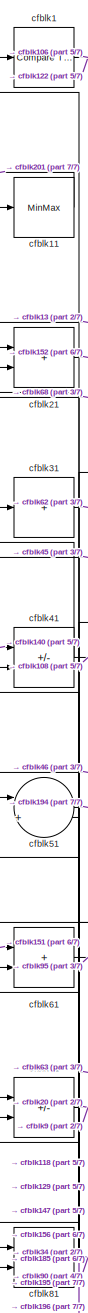
[diagram: root canvas - part 1/7, top left region]
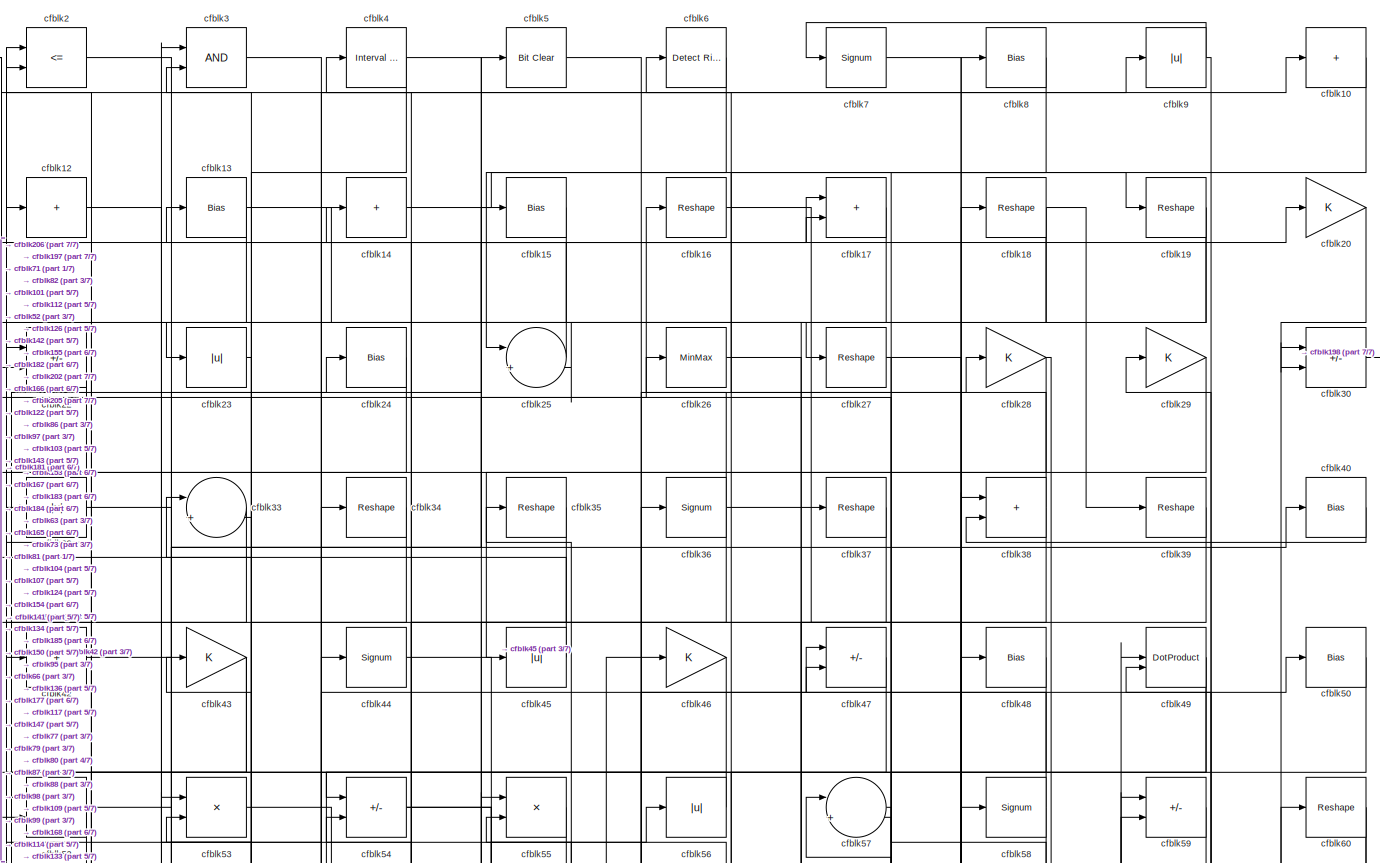
[diagram: root canvas - part 2/7, full width, top band]
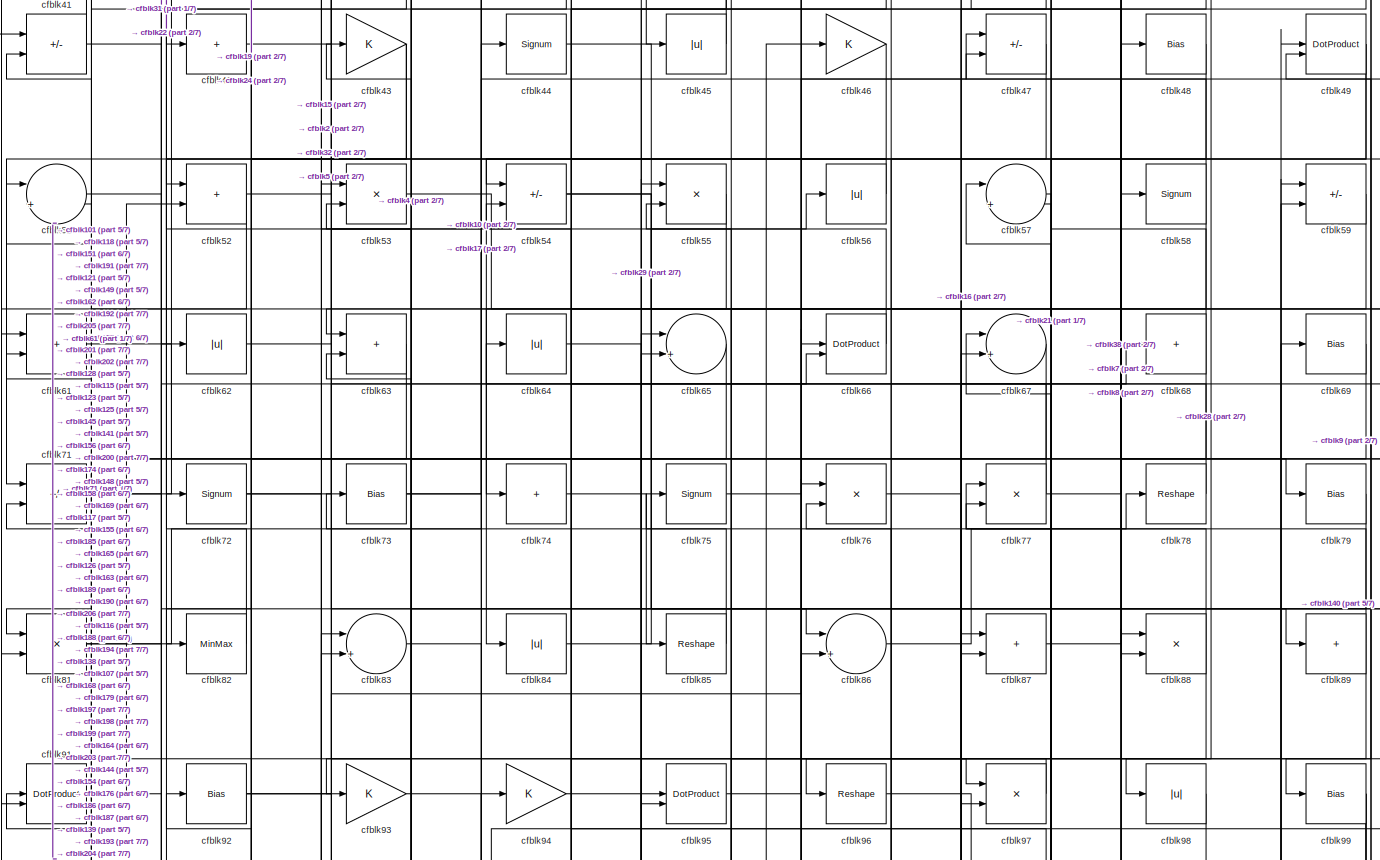
[diagram: root canvas - part 3/7, full width, middle band]
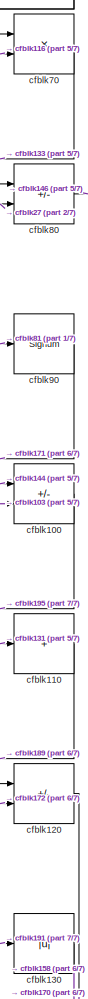
[diagram: root canvas - part 4/7, middle right region]
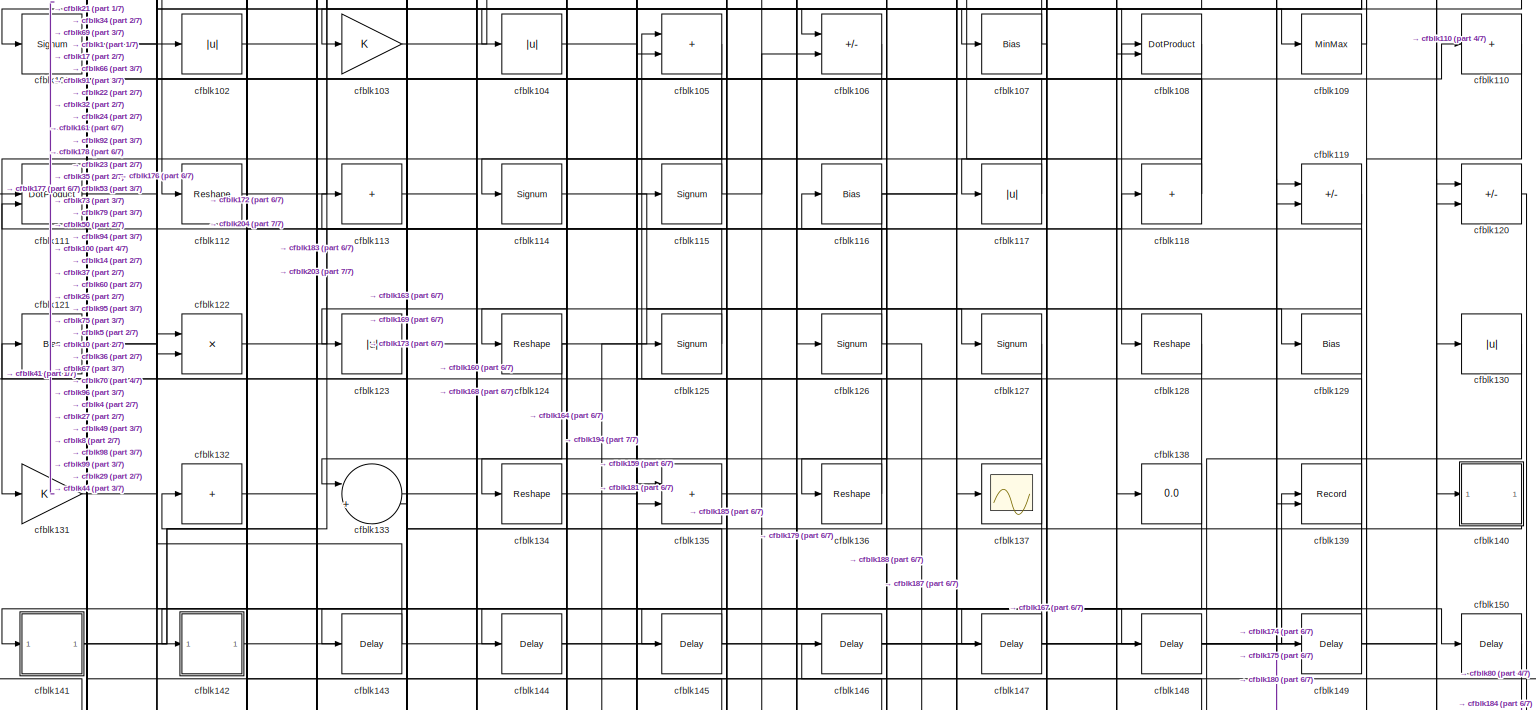
[diagram: root canvas - part 5/7, full width, middle band]
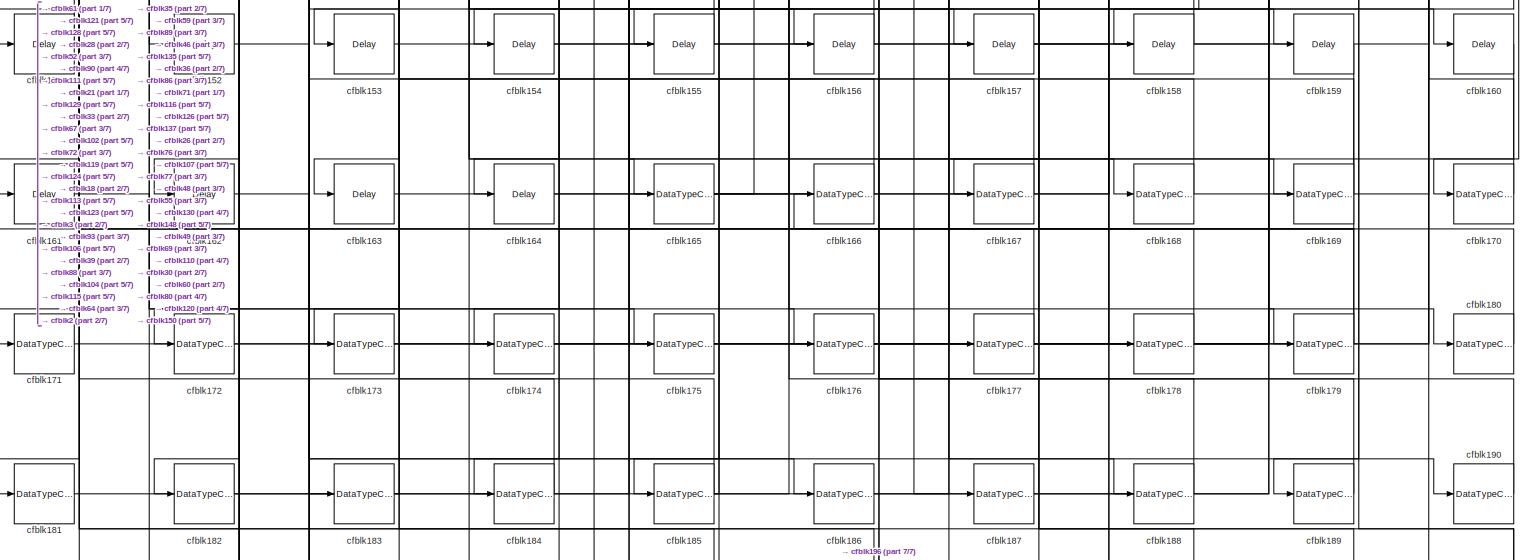
[diagram: root canvas - part 6/7, full width, bottom band]
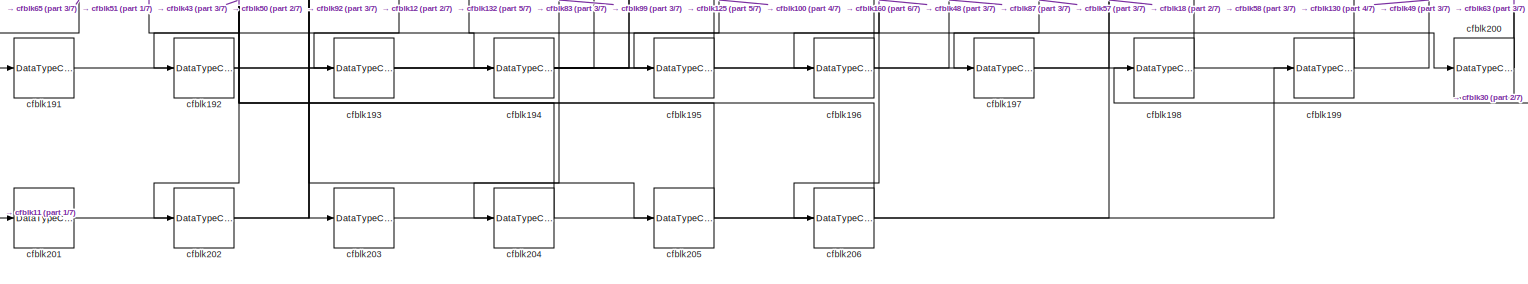
[diagram: root canvas - part 7/7, full width, bottom band]
MODEL slx_a1dbbc6107d8
KIND model
CONFIG AbsTol = auto
CONFIG EnableMultiTasking = off
CONFIG FixedStep = auto
CONFIG MaxStep = auto
CONFIG MinStep = auto
CONFIG RelTol = 1e-3
CONFIG SampleTimeConstraint = Unconstrained
CONFIG SolverName = VariableStepAuto
CONFIG StartTime = 0.0
CONFIG StopTime = 10.0
BLOCK [Reference] cfblk1  REF=hdlsllib/Logic and Bit
Operations/Compare
To Zero
  SourceBlock = hdlsllib/Logic and Bit\nOperations/Compare\nTo Zero
  SourceType = Compare To Zero
BLOCK [Sum] cfblk10
  IconShape = rectangular
  Inputs = +
BLOCK [Sum] cfblk100
  IconShape = rectangular
  Inputs = +-
BLOCK [Signum] cfblk101
BLOCK [Abs] cfblk102
  SaturateOnIntegerOverflow = off
BLOCK [Gain] cfblk103
BLOCK [Abs] cfblk104
  SaturateOnIntegerOverflow = off
BLOCK [Sum] cfblk105
  IconShape = rectangular
BLOCK [Sum] cfblk106
  IconShape = rectangular
  Inputs = +-
BLOCK [Bias] cfblk107
  Bias = 0.0
  SaturateOnIntegerOverflow = off
BLOCK [DotProduct] cfblk108
  OutDataTypeStr = Inherit: Inherit via internal rule
BLOCK [MinMax] cfblk109
BLOCK [MinMax] cfblk11
BLOCK [Sum] cfblk110
  IconShape = rectangular
  Inputs = +
BLOCK [DotProduct] cfblk111
  OutDataTypeStr = Inherit: Inherit via internal rule
BLOCK [Reshape] cfblk112
BLOCK [Sum] cfblk113
  IconShape = rectangular
  Inputs = +
BLOCK [Signum] cfblk114
BLOCK [Signum] cfblk115
BLOCK [Bias] cfblk116
  Bias = 0.0
  SaturateOnIntegerOverflow = off
BLOCK [Abs] cfblk117
  SaturateOnIntegerOverflow = off
BLOCK [Sum] cfblk118
  IconShape = rectangular
  Inputs = +
BLOCK [Sum] cfblk119
  IconShape = rectangular
  Inputs = +-
BLOCK [Sum] cfblk12
  IconShape = rectangular
  Inputs = +
BLOCK [Sum] cfblk120
  IconShape = rectangular
  Inputs = +-
BLOCK [Bias] cfblk121
  Bias = 0.0
  SaturateOnIntegerOverflow = off
BLOCK [Product] cfblk122
  Inputs = */
  RndMeth = Zero
  SaturateOnIntegerOverflow = on
BLOCK [Abs] cfblk123
  SaturateOnIntegerOverflow = off
BLOCK [Reshape] cfblk124
BLOCK [Signum] cfblk125
BLOCK [Signum] cfblk126
BLOCK [Signum] cfblk127
BLOCK [Reshape] cfblk128
BLOCK [Bias] cfblk129
  Bias = 0.0
  SaturateOnIntegerOverflow = off
BLOCK [Bias] cfblk13
  Bias = 0.0
  SaturateOnIntegerOverflow = off
BLOCK [Abs] cfblk130
  SaturateOnIntegerOverflow = off
BLOCK [Gain] cfblk131
BLOCK [Sum] cfblk132
  IconShape = rectangular
  Inputs = +
BLOCK [Sum] cfblk133
  Inputs = |++
BLOCK [Reshape] cfblk134
BLOCK [Sum] cfblk135
  IconShape = rectangular
BLOCK [Reshape] cfblk136
BLOCK [Scope] cfblk137
  Floating = off
  NumInputPorts = 1
  ScopeSpecificationString = Simulink.scopes.TimeScopeBlockCfg('CurrentConfiguration', extmgr.ConfigurationSet(extmgr.Configuration('Core','General UI',true),extmgr.Configuration('Core','Source UI',true),extmgr.Configuration('Sources','WiredSimulink',true,'DataLoggingVariableName','ScopeData2','DataLoggingSaveFormat','Array','DataLoggingLimitDataPoints',true,'DataLoggingDecimation','1'),extmgr.Configuration('Visuals','Time Do...<+868ch>
BLOCK [Display] cfblk138
  Decimation = 1
BLOCK [Record] cfblk139
  CompatibilityTag = XY
  FileSettingsInternal = {"entries":[{"content":{"excelSettings":{"content":{},"type":"Streamout.ExcelSettings"}},"type":"Streamout.FileSettingStorage","uuid":""}],"packageUris":["http:\/\/schema.mathworks.com\/mf0\/streamout_blocks\/R2020a"],"version":"1.0"}
  Layout = [1 1]
  SignalsInternal = {"entries":[{"content":{"signals":[{"content":{"blockPath":[],"dimensions":[1],"domain":"","lineColor":"#a2142f","plots":[1],"port":1,"signalID":2452,"signalName":"XY Graph:1"},"type":"RecordBlkView.Signal","uuid":""},{"content":{"blockPath":[],"dimensions":[1],"domain":"","lineColor":"#139fff","plots":[1],"port":2,"signalID":2455,"signalName":"XY Graph:2"},"type":"RecordBlkView.Signal","uuid":""}...<+146ch>
  VisualizationBindings = {"xyplotplugin":{"info":[{"series":[{"bindingParametersList":[{"parameter":"X-Axis","signalID":2452,"signalName":"XY Graph:1"},{"parameter":"Y-Axis","signalID":2455,"signalName":"XY Graph:2"}],"seriesID":7523}],"subplotID":1}]}}
  st = -1
BLOCK [Sum] cfblk14
  IconShape = rectangular
  Inputs = +
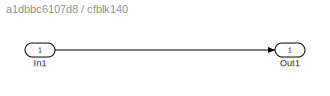
BLOCK [SubSystem] cfblk140
  LibrarySourceBlock = hdlsllib/Ports &\nSubsystems/Subsystem
BLOCK [Inport] cfblk140/In1
BLOCK [Outport] cfblk140/Out1
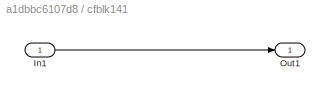
BLOCK [SubSystem] cfblk141
  LibrarySourceBlock = hdlsllib/Ports &\nSubsystems/Subsystem
BLOCK [Inport] cfblk141/In1
BLOCK [Outport] cfblk141/Out1
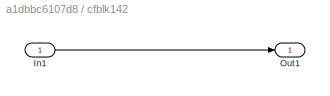
BLOCK [SubSystem] cfblk142
  LibrarySourceBlock = hdlsllib/Ports &\nSubsystems/Subsystem
BLOCK [Inport] cfblk142/In1
BLOCK [Outport] cfblk142/Out1
BLOCK [Delay] cfblk143
  InputPortMap = u0
  SampleTime = 1
BLOCK [Delay] cfblk144
  InputPortMap = u0
  SampleTime = 1
BLOCK [Delay] cfblk145
  InputPortMap = u0
  SampleTime = 1
BLOCK [Delay] cfblk146
  InputPortMap = u0
  SampleTime = 1
BLOCK [Delay] cfblk147
  InputPortMap = u0
  SampleTime = 1
BLOCK [Delay] cfblk148
  InputPortMap = u0
  SampleTime = 1
BLOCK [Delay] cfblk149
  InputPortMap = u0
  SampleTime = 1
BLOCK [Bias] cfblk15
  Bias = 0.0
  SaturateOnIntegerOverflow = off
BLOCK [Delay] cfblk150
  InputPortMap = u0
  SampleTime = 1
BLOCK [Delay] cfblk151
  InputPortMap = u0
  SampleTime = 1
BLOCK [Delay] cfblk152
  InputPortMap = u0
  SampleTime = 1
BLOCK [Delay] cfblk153
  InputPortMap = u0
  SampleTime = 1
BLOCK [Delay] cfblk154
  InputPortMap = u0
  SampleTime = 1
BLOCK [Delay] cfblk155
  InputPortMap = u0
  SampleTime = 1
BLOCK [Delay] cfblk156
  InputPortMap = u0
  SampleTime = 1
BLOCK [Delay] cfblk157
  InputPortMap = u0
  SampleTime = 1
BLOCK [Delay] cfblk158
  InputPortMap = u0
  SampleTime = 1
BLOCK [Delay] cfblk159
  InputPortMap = u0
  SampleTime = 1
BLOCK [Reshape] cfblk16
BLOCK [Delay] cfblk160
  InputPortMap = u0
  SampleTime = 1
BLOCK [Delay] cfblk161
  InputPortMap = u0
  SampleTime = 1
BLOCK [Delay] cfblk162
  InputPortMap = u0
  SampleTime = 1
BLOCK [Delay] cfblk163
  InputPortMap = u0
  SampleTime = 1
BLOCK [Delay] cfblk164
  InputPortMap = u0
  SampleTime = 1
BLOCK [DataTypeConversion] cfblk165
  RndMeth = Floor
  SaturateOnIntegerOverflow = off
BLOCK [DataTypeConversion] cfblk166
  OutDataTypeStr = uint8
  RndMeth = Floor
  SaturateOnIntegerOverflow = off
BLOCK [DataTypeConversion] cfblk167
  OutDataTypeStr = uint8
  RndMeth = Floor
  SaturateOnIntegerOverflow = off
BLOCK [DataTypeConversion] cfblk168
  RndMeth = Floor
  SaturateOnIntegerOverflow = off
BLOCK [DataTypeConversion] cfblk169
  OutDataTypeStr = uint8
  RndMeth = Floor
  SaturateOnIntegerOverflow = off
BLOCK [Sum] cfblk17
  IconShape = rectangular
BLOCK [DataTypeConversion] cfblk170
  OutDataTypeStr = uint8
  RndMeth = Floor
  SaturateOnIntegerOverflow = off
BLOCK [DataTypeConversion] cfblk171
  OutDataTypeStr = uint8
  RndMeth = Floor
  SaturateOnIntegerOverflow = off
BLOCK [DataTypeConversion] cfblk172
  OutDataTypeStr = uint8
  RndMeth = Floor
  SaturateOnIntegerOverflow = off
BLOCK [DataTypeConversion] cfblk173
  OutDataTypeStr = uint8
  RndMeth = Floor
  SaturateOnIntegerOverflow = off
BLOCK [DataTypeConversion] cfblk174
  OutDataTypeStr = uint8
  RndMeth = Floor
  SaturateOnIntegerOverflow = off
BLOCK [DataTypeConversion] cfblk175
  OutDataTypeStr = uint8
  RndMeth = Floor
  SaturateOnIntegerOverflow = off
BLOCK [DataTypeConversion] cfblk176
  OutDataTypeStr = uint8
  RndMeth = Floor
  SaturateOnIntegerOverflow = off
BLOCK [DataTypeConversion] cfblk177
  OutDataTypeStr = uint8
  RndMeth = Floor
  SaturateOnIntegerOverflow = off
BLOCK [DataTypeConversion] cfblk178
  OutDataTypeStr = uint8
  RndMeth = Floor
  SaturateOnIntegerOverflow = off
BLOCK [DataTypeConversion] cfblk179
  RndMeth = Floor
  SaturateOnIntegerOverflow = off
BLOCK [Reshape] cfblk18
BLOCK [DataTypeConversion] cfblk180
  OutDataTypeStr = uint8
  RndMeth = Floor
  SaturateOnIntegerOverflow = off
BLOCK [DataTypeConversion] cfblk181
  OutDataTypeStr = uint8
  RndMeth = Floor
  SaturateOnIntegerOverflow = off
BLOCK [DataTypeConversion] cfblk182
  OutDataTypeStr = uint8
  RndMeth = Floor
  SaturateOnIntegerOverflow = off
BLOCK [DataTypeConversion] cfblk183
  OutDataTypeStr = uint8
  RndMeth = Floor
  SaturateOnIntegerOverflow = off
BLOCK [DataTypeConversion] cfblk184
  OutDataTypeStr = uint8
  RndMeth = Floor
  SaturateOnIntegerOverflow = off
BLOCK [DataTypeConversion] cfblk185
  RndMeth = Floor
  SaturateOnIntegerOverflow = off
BLOCK [DataTypeConversion] cfblk186
  OutDataTypeStr = uint8
  RndMeth = Floor
  SaturateOnIntegerOverflow = off
BLOCK [DataTypeConversion] cfblk187
  OutDataTypeStr = uint8
  RndMeth = Floor
  SaturateOnIntegerOverflow = off
BLOCK [DataTypeConversion] cfblk188
  OutDataTypeStr = uint8
  RndMeth = Floor
  SaturateOnIntegerOverflow = off
BLOCK [DataTypeConversion] cfblk189
  OutDataTypeStr = uint8
  RndMeth = Floor
  SaturateOnIntegerOverflow = off
BLOCK [Reshape] cfblk19
BLOCK [DataTypeConversion] cfblk190
  OutDataTypeStr = uint8
  RndMeth = Floor
  SaturateOnIntegerOverflow = off
BLOCK [DataTypeConversion] cfblk191
  OutDataTypeStr = uint8
  RndMeth = Floor
  SaturateOnIntegerOverflow = off
BLOCK [DataTypeConversion] cfblk192
  OutDataTypeStr = uint8
  RndMeth = Floor
  SaturateOnIntegerOverflow = off
BLOCK [DataTypeConversion] cfblk193
  OutDataTypeStr = uint8
  RndMeth = Floor
  SaturateOnIntegerOverflow = off
BLOCK [DataTypeConversion] cfblk194
  RndMeth = Floor
  SaturateOnIntegerOverflow = off
BLOCK [DataTypeConversion] cfblk195
  OutDataTypeStr = uint8
  RndMeth = Floor
  SaturateOnIntegerOverflow = off
BLOCK [DataTypeConversion] cfblk196
  OutDataTypeStr = uint8
  RndMeth = Floor
  SaturateOnIntegerOverflow = off
BLOCK [DataTypeConversion] cfblk197
  OutDataTypeStr = uint8
  RndMeth = Floor
  SaturateOnIntegerOverflow = off
BLOCK [DataTypeConversion] cfblk198
  OutDataTypeStr = uint8
  RndMeth = Floor
  SaturateOnIntegerOverflow = off
BLOCK [DataTypeConversion] cfblk199
  OutDataTypeStr = uint8
  RndMeth = Floor
  SaturateOnIntegerOverflow = off
BLOCK [RelationalOperator] cfblk2
  InputSameDT = off
  Operator = <=
  OutDataTypeStr = boolean
BLOCK [Gain] cfblk20
BLOCK [DataTypeConversion] cfblk200
  RndMeth = Floor
  SaturateOnIntegerOverflow = off
BLOCK [DataTypeConversion] cfblk201
  OutDataTypeStr = uint8
  RndMeth = Floor
  SaturateOnIntegerOverflow = off
BLOCK [DataTypeConversion] cfblk202
  OutDataTypeStr = uint8
  RndMeth = Floor
  SaturateOnIntegerOverflow = off
BLOCK [DataTypeConversion] cfblk203
  OutDataTypeStr = uint8
  RndMeth = Floor
  SaturateOnIntegerOverflow = off
BLOCK [DataTypeConversion] cfblk204
  OutDataTypeStr = uint8
  RndMeth = Floor
  SaturateOnIntegerOverflow = off
BLOCK [DataTypeConversion] cfblk205
  RndMeth = Floor
  SaturateOnIntegerOverflow = off
BLOCK [DataTypeConversion] cfblk206
  OutDataTypeStr = uint8
  RndMeth = Floor
  SaturateOnIntegerOverflow = off
BLOCK [Sum] cfblk21
  IconShape = rectangular
BLOCK [Sum] cfblk22
  IconShape = rectangular
  Inputs = +-
BLOCK [Abs] cfblk23
  SaturateOnIntegerOverflow = off
BLOCK [Bias] cfblk24
  Bias = 0.0
  SaturateOnIntegerOverflow = off
BLOCK [Sum] cfblk25
  Inputs = |++
BLOCK [MinMax] cfblk26
BLOCK [Reshape] cfblk27
BLOCK [Gain] cfblk28
BLOCK [Gain] cfblk29
BLOCK [Logic] cfblk3
  AllPortsSameDT = off
  OutDataTypeStr = boolean
BLOCK [Sum] cfblk30
  IconShape = rectangular
  Inputs = +-
BLOCK [Sum] cfblk31
  IconShape = rectangular
  Inputs = +
BLOCK [Abs] cfblk32
  SaturateOnIntegerOverflow = off
BLOCK [Sum] cfblk33
  Inputs = |++
BLOCK [Reshape] cfblk34
BLOCK [Reshape] cfblk35
BLOCK [Signum] cfblk36
BLOCK [Reshape] cfblk37
BLOCK [Sum] cfblk38
  IconShape = rectangular
BLOCK [Reshape] cfblk39
BLOCK [Reference] cfblk4  REF=hdlsllib/Logic and Bit
Operations/Interval Test
  SourceBlock = hdlsllib/Logic and Bit\nOperations/Interval Test
  SourceType = Interval Test
BLOCK [Bias] cfblk40
  Bias = 0.0
  SaturateOnIntegerOverflow = off
BLOCK [Sum] cfblk41
  IconShape = rectangular
  Inputs = +-
BLOCK [Sum] cfblk42
  IconShape = rectangular
  Inputs = +
BLOCK [Gain] cfblk43
BLOCK [Signum] cfblk44
BLOCK [Abs] cfblk45
  SaturateOnIntegerOverflow = off
BLOCK [Gain] cfblk46
BLOCK [Sum] cfblk47
  IconShape = rectangular
  Inputs = +-
BLOCK [Bias] cfblk48
  Bias = 0.0
  SaturateOnIntegerOverflow = off
BLOCK [DotProduct] cfblk49
  OutDataTypeStr = Inherit: Inherit via internal rule
BLOCK [Reference] cfblk5  REF=simulink/Logic and Bit
Operations/Bit Clear
  LibrarySourceBlock = hdlsllib/Logic and Bit\nOperations/Bit Clear
  SourceBlock = simulink/Logic and Bit\nOperations/Bit Clear
  SourceType = Bit Clear
BLOCK [Bias] cfblk50
  Bias = 0.0
  SaturateOnIntegerOverflow = off
BLOCK [Sum] cfblk51
  Inputs = |++
BLOCK [Sum] cfblk52
  IconShape = rectangular
BLOCK [Product] cfblk53
  Inputs = */
  RndMeth = Zero
  SaturateOnIntegerOverflow = on
BLOCK [Sum] cfblk54
  IconShape = rectangular
  Inputs = +-
BLOCK [Product] cfblk55
  Inputs = */
  RndMeth = Zero
  SaturateOnIntegerOverflow = on
BLOCK [Abs] cfblk56
  SaturateOnIntegerOverflow = off
BLOCK [Sum] cfblk57
  Inputs = |++
BLOCK [Signum] cfblk58
BLOCK [Sum] cfblk59
  IconShape = rectangular
  Inputs = +-
BLOCK [Reference] cfblk6  REF=hdlsllib/Logic and Bit
Operations/Detect Rise
Positive
  SourceBlock = hdlsllib/Logic and Bit\nOperations/Detect Rise\nPositive
  SourceType = Detect Rise Positive
BLOCK [Reshape] cfblk60
BLOCK [Sum] cfblk61
  IconShape = rectangular
BLOCK [Abs] cfblk62
  SaturateOnIntegerOverflow = off
BLOCK [Sum] cfblk63
  IconShape = rectangular
BLOCK [Abs] cfblk64
  SaturateOnIntegerOverflow = off
BLOCK [Sum] cfblk65
  Inputs = |++
BLOCK [DotProduct] cfblk66
  OutDataTypeStr = Inherit: Inherit via internal rule
BLOCK [Sum] cfblk67
  Inputs = |++
BLOCK [Sum] cfblk68
  IconShape = rectangular
  Inputs = +
BLOCK [Bias] cfblk69
  Bias = 0.0
  SaturateOnIntegerOverflow = off
BLOCK [Signum] cfblk7
BLOCK [Product] cfblk70
  Inputs = */
  RndMeth = Zero
  SaturateOnIntegerOverflow = on
BLOCK [Sum] cfblk71
  IconShape = rectangular
  Inputs = +-
BLOCK [Signum] cfblk72
BLOCK [Bias] cfblk73
  Bias = 0.0
  SaturateOnIntegerOverflow = off
BLOCK [Sum] cfblk74
  IconShape = rectangular
  Inputs = +
BLOCK [Signum] cfblk75
BLOCK [Product] cfblk76
  Inputs = */
  RndMeth = Zero
  SaturateOnIntegerOverflow = on
BLOCK [Product] cfblk77
  Inputs = */
  RndMeth = Zero
  SaturateOnIntegerOverflow = on
BLOCK [Reshape] cfblk78
BLOCK [Bias] cfblk79
  Bias = 0.0
  SaturateOnIntegerOverflow = off
BLOCK [Bias] cfblk8
  Bias = 0.0
  SaturateOnIntegerOverflow = off
BLOCK [Sum] cfblk80
  IconShape = rectangular
  Inputs = +-
BLOCK [Product] cfblk81
  Inputs = */
  RndMeth = Zero
  SaturateOnIntegerOverflow = on
BLOCK [MinMax] cfblk82
BLOCK [Sum] cfblk83
  Inputs = |++
BLOCK [Abs] cfblk84
  SaturateOnIntegerOverflow = off
BLOCK [Reshape] cfblk85
BLOCK [Sum] cfblk86
  Inputs = |++
BLOCK [Sum] cfblk87
  IconShape = rectangular
BLOCK [Product] cfblk88
  Inputs = */
  RndMeth = Zero
  SaturateOnIntegerOverflow = on
BLOCK [Sum] cfblk89
  IconShape = rectangular
  Inputs = +
BLOCK [Abs] cfblk9
  SaturateOnIntegerOverflow = off
BLOCK [Signum] cfblk90
BLOCK [DotProduct] cfblk91
  OutDataTypeStr = Inherit: Inherit via internal rule
BLOCK [Bias] cfblk92
  Bias = 0.0
  SaturateOnIntegerOverflow = off
BLOCK [Gain] cfblk93
BLOCK [Gain] cfblk94
BLOCK [DotProduct] cfblk95
  OutDataTypeStr = Inherit: Inherit via internal rule
BLOCK [Reshape] cfblk96
BLOCK [Product] cfblk97
  Inputs = */
  RndMeth = Zero
  SaturateOnIntegerOverflow = on
BLOCK [Abs] cfblk98
  SaturateOnIntegerOverflow = off
BLOCK [Bias] cfblk99
  Bias = 0.0
  SaturateOnIntegerOverflow = off
LINE cfblk100:1 -> cfblk195:1
NET cfblk101:1 -> cfblk102:1, cfblk17:2
LINE cfblk102:1 -> cfblk183:1
LINE cfblk103:1 -> cfblk100:2
LINE cfblk104:1 -> cfblk159:1
LINE cfblk105:1 -> cfblk124:1
LINE cfblk106:1 -> cfblk164:1
NET cfblk107:1 -> cfblk167:1, cfblk4:1
LINE cfblk108:1 -> cfblk131:1
LINE cfblk109:1 -> cfblk29:1
LINE cfblk10:1 -> cfblk136:1
LINE cfblk110:1 -> cfblk189:1
LINE cfblk111:1 -> cfblk176:1
LINE cfblk112:1 -> cfblk40:1
LINE cfblk113:1 -> cfblk168:1
LINE cfblk114:1 -> cfblk127:1
NET cfblk115:1 -> cfblk106:2, cfblk73:1
NET cfblk116:1 -> cfblk145:1, cfblk67:2, cfblk70:2
LINE cfblk117:1 -> cfblk75:1
NET cfblk118:1 -> cfblk21:2, cfblk91:1
LINE cfblk119:1 -> cfblk173:1
LINE cfblk11:1 -> cfblk201:1
LINE cfblk120:1 -> cfblk170:1
NET cfblk121:1 -> cfblk108:1, cfblk66:2
LINE cfblk122:1 -> cfblk24:1
LINE cfblk123:1 -> cfblk160:1
NET cfblk124:1 -> cfblk129:1, cfblk14:1, cfblk163:1
LINE cfblk125:1 -> cfblk53:2
NET cfblk126:1 -> cfblk187:1, cfblk32:1
LINE cfblk127:1 -> cfblk134:1
LINE cfblk128:1 -> cfblk161:1
NET cfblk129:1 -> cfblk172:1, cfblk41:2
LINE cfblk12:1 -> cfblk205:1
LINE cfblk130:1 -> cfblk158:1
LINE cfblk131:1 -> cfblk110:1
LINE cfblk132:1 -> cfblk203:1
LINE cfblk133:1 -> cfblk50:1
LINE cfblk134:1 -> cfblk26:1
LINE cfblk135:1 -> cfblk179:1
LINE cfblk136:1 -> cfblk105:1
NET cfblk13:1 -> cfblk37:1, cfblk81:2
LINE cfblk140/In1:1 -> cfblk140/Out1:1
LINE cfblk140:1 -> cfblk41:1
LINE cfblk141/In1:1 -> cfblk141/Out1:1
NET cfblk141:1 -> cfblk118:1, cfblk94:1
LINE cfblk142/In1:1 -> cfblk142/Out1:1
LINE cfblk142:1 -> cfblk139:1
LINE cfblk143:1 -> cfblk122:1
LINE cfblk144:1 -> cfblk100:1
LINE cfblk145:1 -> cfblk53:1
LINE cfblk146:1 -> cfblk70:1
LINE cfblk147:1 -> cfblk1:1
LINE cfblk148:1 -> cfblk180:1
LINE cfblk149:1 -> cfblk95:1
LINE cfblk14:1 -> cfblk19:1
LINE cfblk150:1 -> cfblk184:1
LINE cfblk151:1 -> cfblk61:1
LINE cfblk152:1 -> cfblk190:1
LINE cfblk153:1 -> cfblk30:1
LINE cfblk154:1 -> cfblk49:1
LINE cfblk155:1 -> cfblk2:2
LINE cfblk156:1 -> cfblk71:2
LINE cfblk157:1 -> cfblk178:1
LINE cfblk158:1 -> cfblk55:1
LINE cfblk159:1 -> cfblk166:1
LINE cfblk15:1 -> cfblk22:2
LINE cfblk160:1 -> cfblk196:1
LINE cfblk161:1 -> cfblk175:1
LINE cfblk162:1 -> cfblk186:1
LINE cfblk163:1 -> cfblk86:2
LINE cfblk164:1 -> cfblk88:1
NET cfblk165:1 -> cfblk46:1, cfblk48:1
LINE cfblk166:1 -> cfblk3:1
LINE cfblk167:1 -> cfblk3:2
NET cfblk168:1 -> cfblk60:1, cfblk67:1
LINE cfblk169:1 -> cfblk113:1
LINE cfblk16:1 -> cfblk88:2
LINE cfblk170:1 -> cfblk80:1
LINE cfblk171:1 -> cfblk120:1
LINE cfblk172:1 -> cfblk120:2
LINE cfblk173:1 -> cfblk115:1
LINE cfblk174:1 -> cfblk119:1
LINE cfblk175:1 -> cfblk119:2
LINE cfblk176:1 -> cfblk69:1
LINE cfblk177:1 -> cfblk111:1
LINE cfblk178:1 -> cfblk111:2
NET cfblk179:1 -> cfblk121:1, cfblk77:2
LINE cfblk17:1 -> cfblk23:1
LINE cfblk180:1 -> cfblk135:1
LINE cfblk181:1 -> cfblk135:2
LINE cfblk182:1 -> cfblk36:1
LINE cfblk183:1 -> cfblk33:1
LINE cfblk184:1 -> cfblk33:2
NET cfblk185:1 -> cfblk137:1, cfblk35:1, cfblk61:2
LINE cfblk186:1 -> cfblk59:1
LINE cfblk187:1 -> cfblk59:2
LINE cfblk188:1 -> cfblk116:1
LINE cfblk189:1 -> cfblk76:1
NET cfblk18:1 -> cfblk142:1, cfblk153:1, cfblk39:1
LINE cfblk190:1 -> cfblk76:2
LINE cfblk191:1 -> cfblk130:1
LINE cfblk192:1 -> cfblk65:1
LINE cfblk193:1 -> cfblk65:2
NET cfblk194:1 -> cfblk125:1, cfblk87:1
LINE cfblk195:1 -> cfblk51:1
LINE cfblk196:1 -> cfblk51:2
LINE cfblk197:1 -> cfblk18:1
LINE cfblk198:1 -> cfblk57:1
LINE cfblk199:1 -> cfblk57:2
NET cfblk19:1 -> cfblk25:2, cfblk42:1
NET cfblk1:1 -> cfblk106:1, cfblk122:2
NET cfblk200:1 -> cfblk49:2, cfblk63:2
LINE cfblk201:1 -> cfblk83:1
LINE cfblk202:1 -> cfblk83:2
LINE cfblk203:1 -> cfblk58:1
LINE cfblk204:1 -> cfblk132:1
NET cfblk205:1 -> cfblk199:1, cfblk92:1
LINE cfblk206:1 -> cfblk12:1
LINE cfblk20:1 -> cfblk30:2
LINE cfblk21:1 -> cfblk152:1
LINE cfblk22:1 -> cfblk112:1
LINE cfblk23:1 -> cfblk103:1
LINE cfblk24:1 -> cfblk82:1
LINE cfblk25:1 -> cfblk13:1
LINE cfblk26:1 -> cfblk177:1
NET cfblk27:1 -> cfblk147:1, cfblk80:2
NET cfblk28:1 -> cfblk181:1, cfblk98:1
LINE cfblk29:1 -> cfblk45:1
LINE cfblk2:1 -> cfblk86:1
LINE cfblk30:1 -> cfblk198:1
LINE cfblk31:1 -> cfblk62:1
LINE cfblk32:1 -> cfblk97:1
LINE cfblk33:1 -> cfblk182:1
LINE cfblk34:1 -> cfblk141:1
LINE cfblk35:1 -> cfblk143:1
NET cfblk36:1 -> cfblk105:2, cfblk109:1, cfblk16:1
LINE cfblk37:1 -> cfblk104:1
NET cfblk38:1 -> cfblk6:1, cfblk97:2
LINE cfblk39:1 -> cfblk154:1
LINE cfblk3:1 -> cfblk165:1
LINE cfblk40:1 -> cfblk38:2
NET cfblk41:1 -> cfblk108:2, cfblk11:1
LINE cfblk42:1 -> cfblk15:1
NET cfblk43:1 -> cfblk192:1, cfblk72:1
LINE cfblk44:1 -> cfblk140:1
LINE cfblk45:1 -> cfblk31:1
LINE cfblk46:1 -> cfblk71:1
LINE cfblk47:1 -> cfblk84:1
LINE cfblk48:1 -> cfblk206:1
NET cfblk49:1 -> cfblk107:1, cfblk52:1
NET cfblk4:1 -> cfblk27:1, cfblk63:1
LINE cfblk50:1 -> cfblk202:1
LINE cfblk51:1 -> cfblk194:1
NET cfblk52:1 -> cfblk151:1, cfblk5:1
LINE cfblk53:1 -> cfblk126:1
NET cfblk54:1 -> cfblk87:2, cfblk89:1
LINE cfblk55:1 -> cfblk74:1
LINE cfblk56:1 -> cfblk54:1
LINE cfblk57:1 -> cfblk197:1
NET cfblk58:1 -> cfblk47:2, cfblk91:2
LINE cfblk59:1 -> cfblk185:1
LINE cfblk5:1 -> cfblk150:1
NET cfblk60:1 -> cfblk114:1, cfblk133:2
LINE cfblk61:1 -> cfblk95:2
LINE cfblk62:1 -> cfblk44:1
LINE cfblk63:1 -> cfblk81:1
LINE cfblk64:1 -> cfblk169:1
LINE cfblk65:1 -> cfblk191:1
LINE cfblk66:1 -> cfblk22:1
LINE cfblk67:1 -> cfblk162:1
NET cfblk68:1 -> cfblk21:1, cfblk93:1
LINE cfblk69:1 -> cfblk101:1
LINE cfblk6:1 -> cfblk25:1
LINE cfblk70:1 -> cfblk133:1
NET cfblk71:1 -> cfblk20:1, cfblk9:1
NET cfblk72:1 -> cfblk157:1, cfblk68:1
NET cfblk73:1 -> cfblk10:1, cfblk17:1
LINE cfblk74:1 -> cfblk85:1
LINE cfblk75:1 -> cfblk47:1
LINE cfblk76:1 -> cfblk188:1
NET cfblk77:1 -> cfblk54:2, cfblk8:1
LINE cfblk78:1 -> cfblk64:1
LINE cfblk79:1 -> cfblk123:1
LINE cfblk7:1 -> cfblk79:1
LINE cfblk80:1 -> cfblk146:1
NET cfblk81:1 -> cfblk34:1, cfblk90:1
LINE cfblk82:1 -> cfblk2:1
LINE cfblk83:1 -> cfblk200:1
LINE cfblk84:1 -> cfblk56:1
LINE cfblk85:1 -> cfblk43:1
LINE cfblk86:1 -> cfblk78:1
LINE cfblk87:1 -> cfblk38:1
NET cfblk88:1 -> cfblk174:1, cfblk77:1
NET cfblk89:1 -> cfblk155:1, cfblk55:2
LINE cfblk8:1 -> cfblk117:1
LINE cfblk90:1 -> cfblk171:1
NET cfblk91:1 -> cfblk149:1, cfblk52:2
NET cfblk92:1 -> cfblk128:1, cfblk66:1
LINE cfblk93:1 -> cfblk156:1
LINE cfblk94:1 -> cfblk148:1
LINE cfblk95:1 -> cfblk28:1
LINE cfblk96:1 -> cfblk138:1
LINE cfblk97:1 -> cfblk96:1
LINE cfblk98:1 -> cfblk144:1
NET cfblk99:1 -> cfblk139:2, cfblk193:1, cfblk204:1
NET cfblk9:1 -> cfblk7:1, cfblk99:1
note: NET lines group one-source signal fan-out (src -> all destinations, sorted); 1:1 wires keep LINE
